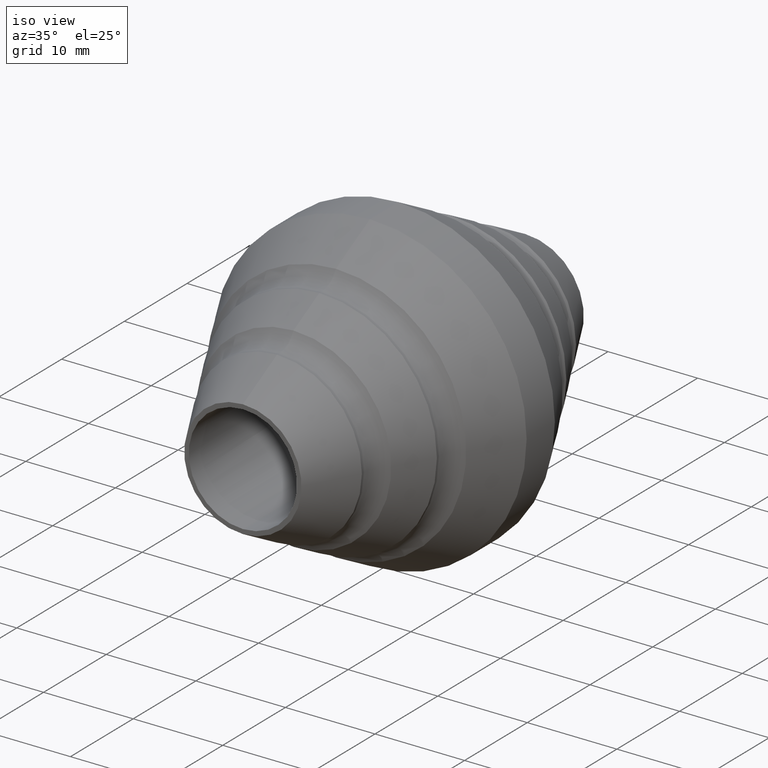
[diagram: clean part render]
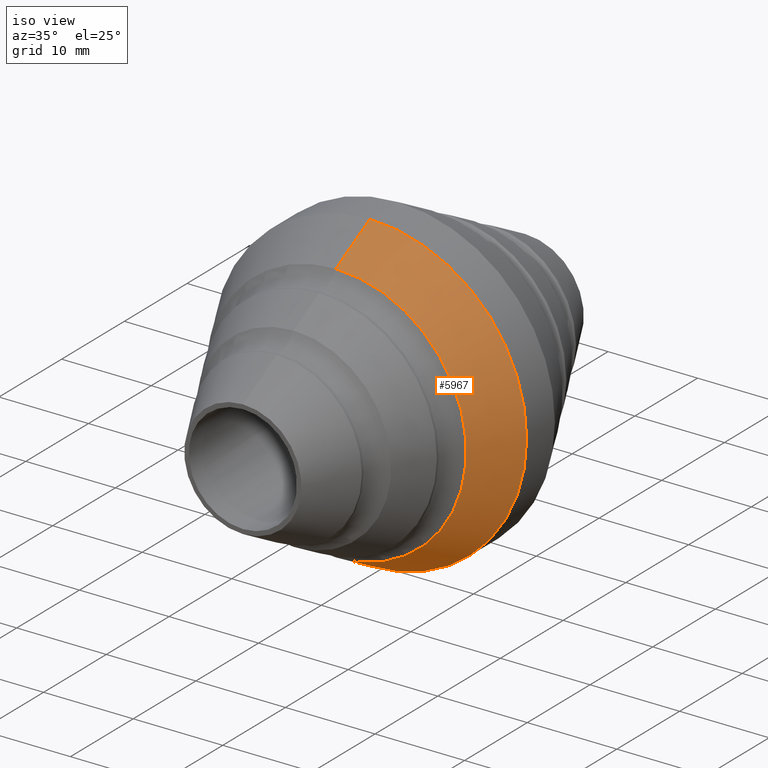
[diagram: tour spotlight — one face highlighted and labeled with its STEP entity id]
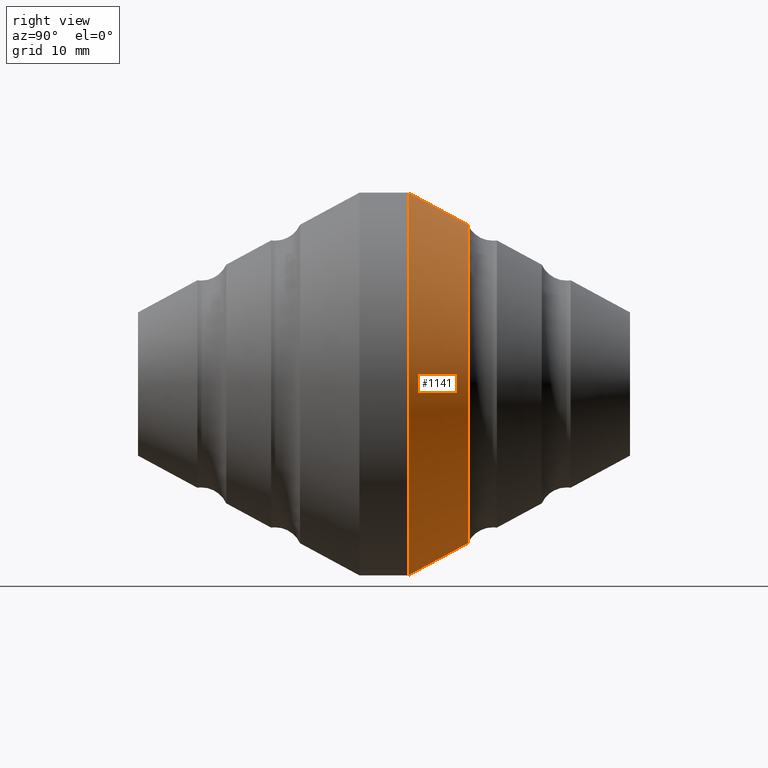
[diagram: tour spotlight — one face highlighted and labeled with its STEP entity id]
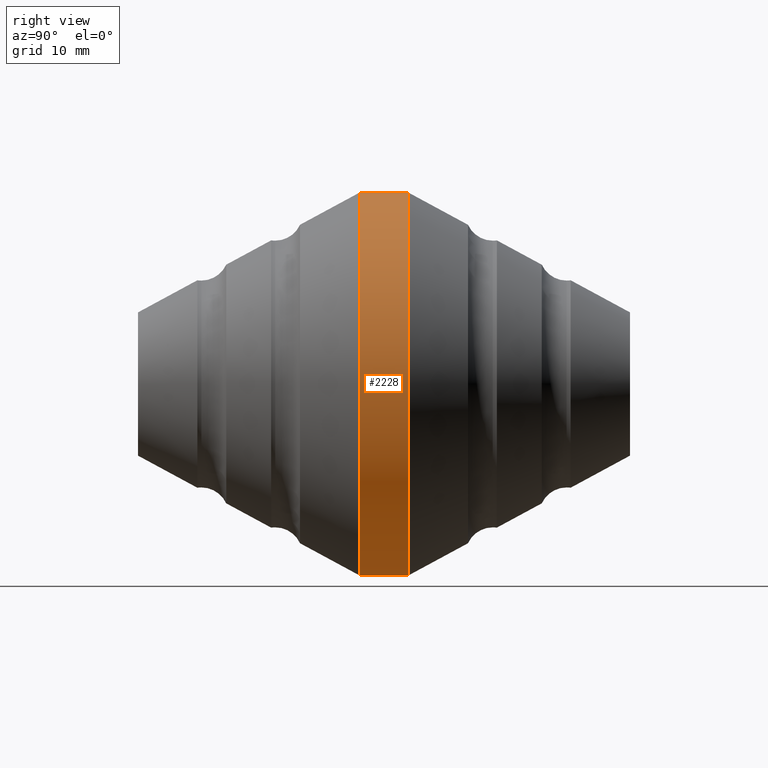
[diagram: tour spotlight — one face highlighted and labeled with its STEP entity id]
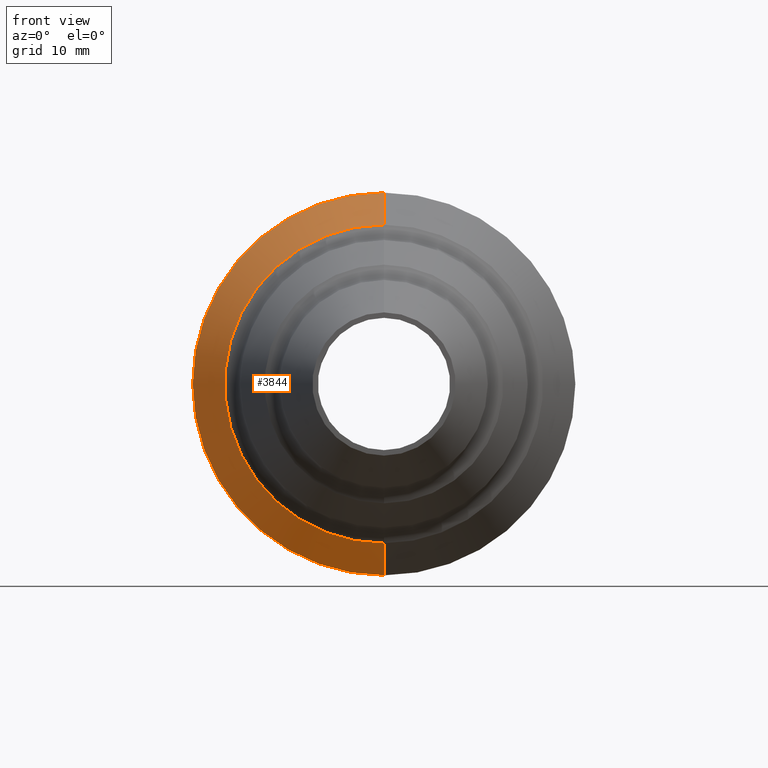
[diagram: tour spotlight — one face highlighted and labeled with its STEP entity id]
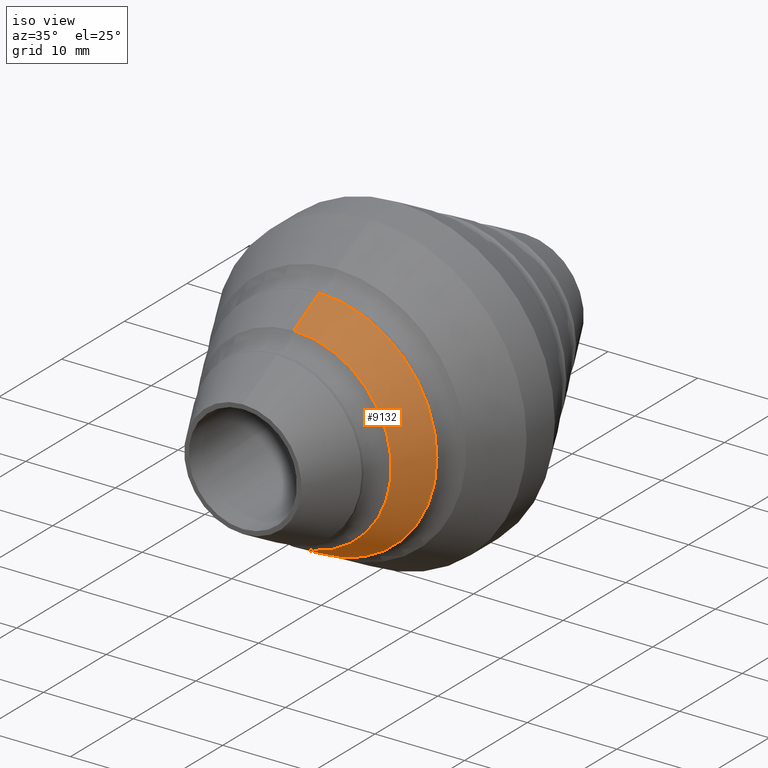
[diagram: tour spotlight — one face highlighted and labeled with its STEP entity id]
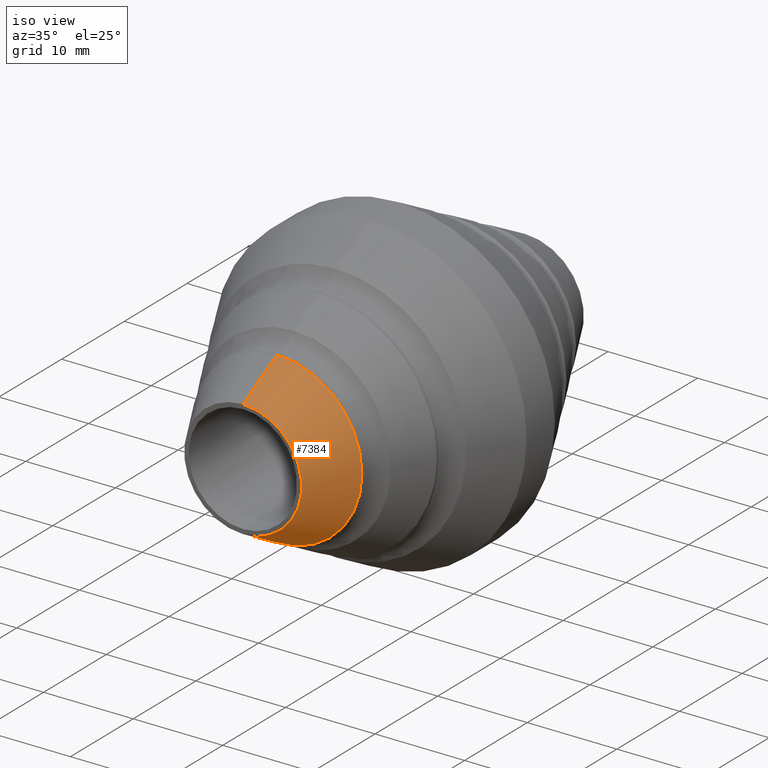
[diagram: tour spotlight — one face highlighted and labeled with its STEP entity id]
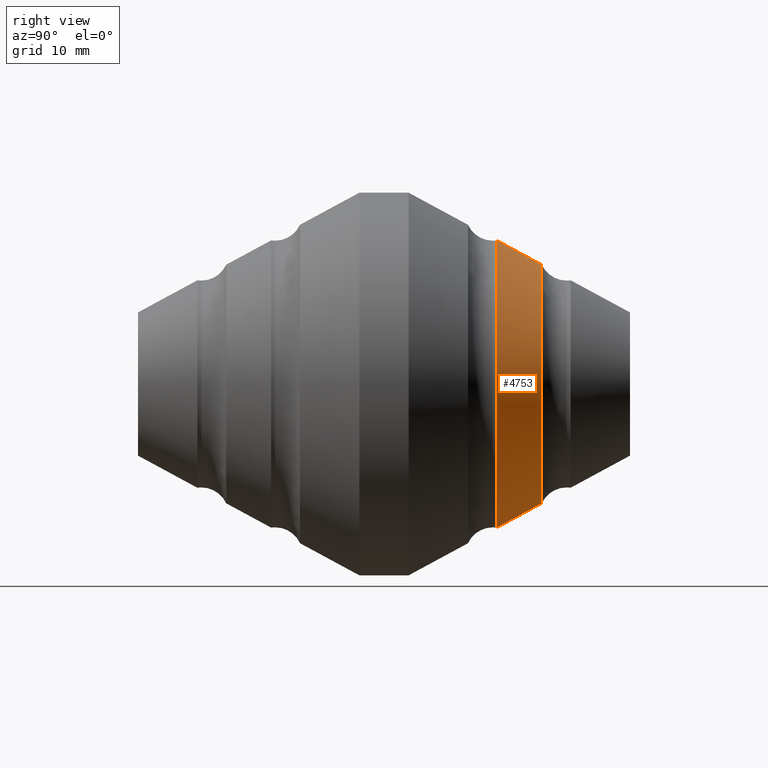
[diagram: tour spotlight — one face highlighted and labeled with its STEP entity id]
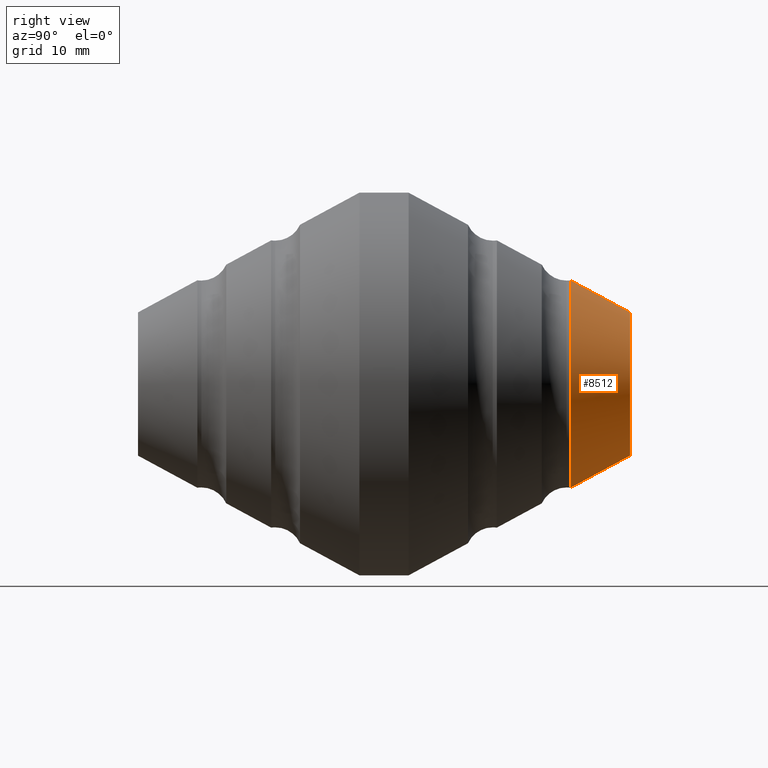
[diagram: tour spotlight — one face highlighted and labeled with its STEP entity id]
A machine part: a face-by-face anatomy tour. The part has 307 B-rep faces; the first image is the clean iso view, then the 8 largest visible faces are spotlighted one at a time (largest first), each with its STEP entity span.

Face 1 — iso view, entity #5967. In plain terms, the highlighted conical surface has half-angle 28.402 deg.
Definition (entity closure, byte-faithful):
#45 = VERTEX_POINT ( 'NONE', #4391 ) ;
#132 = VERTEX_POINT ( 'NONE', #10217 ) ;
#916 = VERTEX_POINT ( 'NONE', #9804 ) ;
#1148 = DIRECTION ( 'NONE',  ( 0.000000000000000000, 0.000000000000000000, -1.000000000000000000 ) ) ;
#1267 = FACE_OUTER_BOUND ( 'NONE', #11438, .T. ) ;
#2614 = AXIS2_PLACEMENT_3D ( 'NONE', #7786, #4566, #1148 ) ;
#3458 = AXIS2_PLACEMENT_3D ( 'NONE', #5836, #13629, #9184 ) ;
#3625 = AXIS2_PLACEMENT_3D ( 'NONE', #8346, #10667, #10525 ) ;
#3966 = CARTESIAN_POINT ( 'NONE',  ( -1.963321905581805599E-15, -7.680550745167210813, 14.56347996742810125 ) ) ;
#4302 = DIRECTION ( 'NONE',  ( -5.825073055777201788E-17, 0.8796328365551915329, 0.4756533116187332544 ) ) ;
#4375 = VECTOR ( 'NONE', #4302, 1000.000000000000000 ) ;
#4391 = CARTESIAN_POINT ( 'NONE',  ( 0.000000000000000000, -7.680550745167210813, -14.56347996742810125 ) ) ;
#4467 = CIRCLE ( 'NONE', #2614, 14.56347996742810125 ) ;
#4566 = DIRECTION ( 'NONE',  ( 0.000000000000000000, -1.000000000000000000, 0.000000000000000000 ) ) ;
#5836 = CARTESIAN_POINT ( 'NONE',  ( 0.000000000000000000, -2.249999999999999556, 0.000000000000000000 ) ) ;
#5967 = ADVANCED_FACE ( 'NONE', ( #1267 ), #6480, .T. ) ;
#6480 = CONICAL_SURFACE ( 'NONE', #3625, 17.50000000000000000, 0.4957065921522886276 ) ;
#6504 = EDGE_CURVE ( 'NONE', #11338, #916, #7340, .T. ) ;
#6831 = EDGE_CURVE ( 'NONE', #45, #11338, #4467, .T. ) ;
#7224 = VECTOR ( 'NONE', #10498, 1000.000000000000000 ) ;
#7340 = LINE ( 'NONE', #8674, #4375 ) ;
#7462 = ORIENTED_EDGE ( 'NONE', *, *, #6504, .F. ) ;
#7689 = ORIENTED_EDGE ( 'NONE', *, *, #13447, .T. ) ;
#7786 = CARTESIAN_POINT ( 'NONE',  ( 0.000000000000000000, -7.680550745167210813, 0.000000000000000000 ) ) ;
#8270 = CARTESIAN_POINT ( 'NONE',  ( 0.000000000000000000, -2.249999999999999556, -17.50000000000000000 ) ) ;
#8346 = CARTESIAN_POINT ( 'NONE',  ( 0.000000000000000000, -2.249999999999999556, 0.000000000000000000 ) ) ;
#8674 = CARTESIAN_POINT ( 'NONE',  ( -2.143131898507868248E-15, -2.249999999999999556, 17.50000000000000000 ) ) ;
#9168 = ORIENTED_EDGE ( 'NONE', *, *, #9640, .T. ) ;
#9184 = DIRECTION ( 'NONE',  ( 0.000000000000000000, 0.000000000000000000, -1.000000000000000000 ) ) ;
#9640 = EDGE_CURVE ( 'NONE', #132, #916, #11787, .T. ) ;
#9804 = CARTESIAN_POINT ( 'NONE',  ( 2.143131898507868248E-15, -2.249999999999999556, 17.50000000000000000 ) ) ;
#10005 = LINE ( 'NONE', #8270, #7224 ) ;
#10217 = CARTESIAN_POINT ( 'NONE',  ( 0.000000000000000000, -2.249999999999999556, -17.50000000000000000 ) ) ;
#10498 = DIRECTION ( 'NONE',  ( 0.000000000000000000, 0.8796328365551915329, -0.4756533116187332544 ) ) ;
#10525 = DIRECTION ( 'NONE',  ( 0.000000000000000000, 0.000000000000000000, -1.000000000000000000 ) ) ;
#10667 = DIRECTION ( 'NONE',  ( -0.000000000000000000, 1.000000000000000000, -0.000000000000000000 ) ) ;
#11338 = VERTEX_POINT ( 'NONE', #3966 ) ;
#11438 = EDGE_LOOP ( 'NONE', ( #7462, #11570, #7689, #9168 ) ) ;
#11570 = ORIENTED_EDGE ( 'NONE', *, *, #6831, .F. ) ;
#11787 = CIRCLE ( 'NONE', #3458, 17.50000000000000000 ) ;
#13447 = EDGE_CURVE ( 'NONE', #45, #132, #10005, .T. ) ;
#13629 = DIRECTION ( 'NONE',  ( 0.000000000000000000, -1.000000000000000000, 0.000000000000000000 ) ) ;

Face 2 — right view, entity #1141. In plain terms, the highlighted conical surface has half-angle 28.402 deg.
Definition (entity closure, byte-faithful):
#115 = VECTOR ( 'NONE', #5088, 1000.000000000000000 ) ;
#360 = VERTEX_POINT ( 'NONE', #766 ) ;
#445 = ORIENTED_EDGE ( 'NONE', *, *, #10957, .F. ) ;
#766 = CARTESIAN_POINT ( 'NONE',  ( 0.000000000000000000, 7.680550745167210813, -14.56347996742810125 ) ) ;
#819 = FACE_OUTER_BOUND ( 'NONE', #8289, .T. ) ;
#919 = CARTESIAN_POINT ( 'NONE',  ( 0.000000000000000000, 2.249999999999999556, -17.50000000000000000 ) ) ;
#1141 = ADVANCED_FACE ( 'NONE', ( #819 ), #8099, .T. ) ;
#2324 = EDGE_CURVE ( 'NONE', #4717, #4870, #7048, .T. ) ;
#2426 = DIRECTION ( 'NONE',  ( -0.000000000000000000, -1.000000000000000000, -0.000000000000000000 ) ) ;
#2858 = ORIENTED_EDGE ( 'NONE', *, *, #9951, .F. ) ;
#3529 = DIRECTION ( 'NONE',  ( 0.000000000000000000, 0.000000000000000000, -1.000000000000000000 ) ) ;
#3969 = CARTESIAN_POINT ( 'NONE',  ( 2.143131898507868248E-15, 2.249999999999999556, 17.50000000000000000 ) ) ;
#4223 = DIRECTION ( 'NONE',  ( 0.000000000000000000, 0.000000000000000000, -1.000000000000000000 ) ) ;
#4717 = VERTEX_POINT ( 'NONE', #6821 ) ;
#4870 = VERTEX_POINT ( 'NONE', #6461 ) ;
#5088 = DIRECTION ( 'NONE',  ( 5.825073055777201788E-17, -0.8796328365551915329, 0.4756533116187332544 ) ) ;
#5704 = CIRCLE ( 'NONE', #12754, 17.50000000000000000 ) ;
#5771 = CARTESIAN_POINT ( 'NONE',  ( 0.000000000000000000, 2.249999999999999556, 0.000000000000000000 ) ) ;
#6109 = CIRCLE ( 'NONE', #6728, 14.56347996742810125 ) ;
#6461 = CARTESIAN_POINT ( 'NONE',  ( 2.143131898507868248E-15, 2.249999999999999556, 17.50000000000000000 ) ) ;
#6588 = LINE ( 'NONE', #12272, #9181 ) ;
#6728 = AXIS2_PLACEMENT_3D ( 'NONE', #12751, #8214, #9336 ) ;
#6821 = CARTESIAN_POINT ( 'NONE',  ( 1.963321905581805599E-15, 7.680550745167210813, 14.56347996742810125 ) ) ;
#7048 = LINE ( 'NONE', #3969, #115 ) ;
#7435 = EDGE_CURVE ( 'NONE', #360, #4717, #6109, .T. ) ;
#7671 = DIRECTION ( 'NONE',  ( 0.000000000000000000, -0.8796328365551915329, -0.4756533116187332544 ) ) ;
#8099 = CONICAL_SURFACE ( 'NONE', #11292, 17.50000000000000000, 0.4957065921522886276 ) ;
#8214 = DIRECTION ( 'NONE',  ( -0.000000000000000000, -1.000000000000000000, -0.000000000000000000 ) ) ;
#8289 = EDGE_LOOP ( 'NONE', ( #13648, #13192, #445, #2858 ) ) ;
#9181 = VECTOR ( 'NONE', #7671, 1000.000000000000000 ) ;
#9336 = DIRECTION ( 'NONE',  ( 0.000000000000000000, 0.000000000000000000, -1.000000000000000000 ) ) ;
#9951 = EDGE_CURVE ( 'NONE', #360, #11699, #6588, .T. ) ;
#10957 = EDGE_CURVE ( 'NONE', #11699, #4870, #5704, .T. ) ;
#11292 = AXIS2_PLACEMENT_3D ( 'NONE', #5771, #2426, #3529 ) ;
#11699 = VERTEX_POINT ( 'NONE', #919 ) ;
#11801 = CARTESIAN_POINT ( 'NONE',  ( 0.000000000000000000, 2.249999999999999556, 0.000000000000000000 ) ) ;
#12272 = CARTESIAN_POINT ( 'NONE',  ( 0.000000000000000000, 2.249999999999999556, -17.50000000000000000 ) ) ;
#12751 = CARTESIAN_POINT ( 'NONE',  ( 0.000000000000000000, 7.680550745167210813, 0.000000000000000000 ) ) ;
#12754 = AXIS2_PLACEMENT_3D ( 'NONE', #11801, #14100, #4223 ) ;
#13192 = ORIENTED_EDGE ( 'NONE', *, *, #2324, .T. ) ;
#13648 = ORIENTED_EDGE ( 'NONE', *, *, #7435, .T. ) ;
#14100 = DIRECTION ( 'NONE',  ( -0.000000000000000000, -1.000000000000000000, -0.000000000000000000 ) ) ;

Face 3 — right view, entity #2228. In plain terms, the highlighted cylindrical surface (partial cylindrical patch) has radius 17.5 mm, axis along (-0, -1, -0).
Definition (entity closure, byte-faithful):
#132 = VERTEX_POINT ( 'NONE', #10217 ) ;
#506 = CARTESIAN_POINT ( 'NONE',  ( 0.000000000000000000, 0.000000000000000000, 0.000000000000000000 ) ) ;
#563 = ORIENTED_EDGE ( 'NONE', *, *, #9640, .F. ) ;
#836 = LINE ( 'NONE', #7032, #11404 ) ;
#916 = VERTEX_POINT ( 'NONE', #9804 ) ;
#919 = CARTESIAN_POINT ( 'NONE',  ( 0.000000000000000000, 2.249999999999999556, -17.50000000000000000 ) ) ;
#1491 = LINE ( 'NONE', #7987, #8251 ) ;
#1565 = DIRECTION ( 'NONE',  ( 0.000000000000000000, 0.000000000000000000, -1.000000000000000000 ) ) ;
#2183 = ORIENTED_EDGE ( 'NONE', *, *, #10957, .T. ) ;
#2228 = ADVANCED_FACE ( 'NONE', ( #3726 ), #8596, .T. ) ;
#2429 = EDGE_CURVE ( 'NONE', #4870, #916, #1491, .T. ) ;
#3458 = AXIS2_PLACEMENT_3D ( 'NONE', #5836, #13629, #9184 ) ;
#3726 = FACE_OUTER_BOUND ( 'NONE', #12122, .T. ) ;
#4223 = DIRECTION ( 'NONE',  ( 0.000000000000000000, 0.000000000000000000, -1.000000000000000000 ) ) ;
#4852 = DIRECTION ( 'NONE',  ( -0.000000000000000000, -1.000000000000000000, -0.000000000000000000 ) ) ;
#4870 = VERTEX_POINT ( 'NONE', #6461 ) ;
#5704 = CIRCLE ( 'NONE', #12754, 17.50000000000000000 ) ;
#5836 = CARTESIAN_POINT ( 'NONE',  ( 0.000000000000000000, -2.249999999999999556, 0.000000000000000000 ) ) ;
#6023 = AXIS2_PLACEMENT_3D ( 'NONE', #506, #4852, #1565 ) ;
#6461 = CARTESIAN_POINT ( 'NONE',  ( 2.143131898507868248E-15, 2.249999999999999556, 17.50000000000000000 ) ) ;
#7032 = CARTESIAN_POINT ( 'NONE',  ( 0.000000000000000000, 0.000000000000000000, -17.50000000000000000 ) ) ;
#7987 = CARTESIAN_POINT ( 'NONE',  ( 2.143131898507868248E-15, 0.000000000000000000, 17.50000000000000000 ) ) ;
#8076 = ORIENTED_EDGE ( 'NONE', *, *, #2429, .T. ) ;
#8153 = DIRECTION ( 'NONE',  ( -0.000000000000000000, -1.000000000000000000, -0.000000000000000000 ) ) ;
#8251 = VECTOR ( 'NONE', #10167, 1000.000000000000000 ) ;
#8596 = CYLINDRICAL_SURFACE ( 'NONE', #6023, 17.50000000000000000 ) ;
#9184 = DIRECTION ( 'NONE',  ( 0.000000000000000000, 0.000000000000000000, -1.000000000000000000 ) ) ;
#9640 = EDGE_CURVE ( 'NONE', #132, #916, #11787, .T. ) ;
#9804 = CARTESIAN_POINT ( 'NONE',  ( 2.143131898507868248E-15, -2.249999999999999556, 17.50000000000000000 ) ) ;
#10167 = DIRECTION ( 'NONE',  ( -0.000000000000000000, -1.000000000000000000, -0.000000000000000000 ) ) ;
#10217 = CARTESIAN_POINT ( 'NONE',  ( 0.000000000000000000, -2.249999999999999556, -17.50000000000000000 ) ) ;
#10957 = EDGE_CURVE ( 'NONE', #11699, #4870, #5704, .T. ) ;
#11404 = VECTOR ( 'NONE', #8153, 1000.000000000000000 ) ;
#11623 = ORIENTED_EDGE ( 'NONE', *, *, #12866, .F. ) ;
#11699 = VERTEX_POINT ( 'NONE', #919 ) ;
#11787 = CIRCLE ( 'NONE', #3458, 17.50000000000000000 ) ;
#11801 = CARTESIAN_POINT ( 'NONE',  ( 0.000000000000000000, 2.249999999999999556, 0.000000000000000000 ) ) ;
#12122 = EDGE_LOOP ( 'NONE', ( #2183, #8076, #563, #11623 ) ) ;
#12754 = AXIS2_PLACEMENT_3D ( 'NONE', #11801, #14100, #4223 ) ;
#12866 = EDGE_CURVE ( 'NONE', #11699, #132, #836, .T. ) ;
#13629 = DIRECTION ( 'NONE',  ( 0.000000000000000000, -1.000000000000000000, 0.000000000000000000 ) ) ;
#14100 = DIRECTION ( 'NONE',  ( -0.000000000000000000, -1.000000000000000000, -0.000000000000000000 ) ) ;

Face 4 — front view, entity #3844. In plain terms, the highlighted conical surface has half-angle 28.402 deg.
Definition (entity closure, byte-faithful):
#45 = VERTEX_POINT ( 'NONE', #4391 ) ;
#78 = DIRECTION ( 'NONE',  ( 0.000000000000000000, 0.000000000000000000, -1.000000000000000000 ) ) ;
#132 = VERTEX_POINT ( 'NONE', #10217 ) ;
#916 = VERTEX_POINT ( 'NONE', #9804 ) ;
#1480 = CONICAL_SURFACE ( 'NONE', #6129, 17.50000000000000000, 0.4957065921522886276 ) ;
#2012 = CIRCLE ( 'NONE', #5735, 14.56347996742810125 ) ;
#2449 = ORIENTED_EDGE ( 'NONE', *, *, #4144, .T. ) ;
#2790 = CARTESIAN_POINT ( 'NONE',  ( 0.000000000000000000, -7.680550745167210813, 0.000000000000000000 ) ) ;
#2863 = AXIS2_PLACEMENT_3D ( 'NONE', #5191, #4160, #7326 ) ;
#3844 = ADVANCED_FACE ( 'NONE', ( #13259 ), #1480, .T. ) ;
#3966 = CARTESIAN_POINT ( 'NONE',  ( -1.963321905581805599E-15, -7.680550745167210813, 14.56347996742810125 ) ) ;
#4144 = EDGE_CURVE ( 'NONE', #916, #132, #10833, .T. ) ;
#4160 = DIRECTION ( 'NONE',  ( 0.000000000000000000, -1.000000000000000000, 0.000000000000000000 ) ) ;
#4302 = DIRECTION ( 'NONE',  ( -5.825073055777201788E-17, 0.8796328365551915329, 0.4756533116187332544 ) ) ;
#4375 = VECTOR ( 'NONE', #4302, 1000.000000000000000 ) ;
#4391 = CARTESIAN_POINT ( 'NONE',  ( 0.000000000000000000, -7.680550745167210813, -14.56347996742810125 ) ) ;
#5191 = CARTESIAN_POINT ( 'NONE',  ( 0.000000000000000000, -2.249999999999999556, 0.000000000000000000 ) ) ;
#5735 = AXIS2_PLACEMENT_3D ( 'NONE', #2790, #10560, #13982 ) ;
#6129 = AXIS2_PLACEMENT_3D ( 'NONE', #6711, #8887, #78 ) ;
#6483 = ORIENTED_EDGE ( 'NONE', *, *, #13447, .F. ) ;
#6504 = EDGE_CURVE ( 'NONE', #11338, #916, #7340, .T. ) ;
#6711 = CARTESIAN_POINT ( 'NONE',  ( 0.000000000000000000, -2.249999999999999556, 0.000000000000000000 ) ) ;
#7224 = VECTOR ( 'NONE', #10498, 1000.000000000000000 ) ;
#7326 = DIRECTION ( 'NONE',  ( 0.000000000000000000, 0.000000000000000000, -1.000000000000000000 ) ) ;
#7340 = LINE ( 'NONE', #8674, #4375 ) ;
#8270 = CARTESIAN_POINT ( 'NONE',  ( 0.000000000000000000, -2.249999999999999556, -17.50000000000000000 ) ) ;
#8277 = ORIENTED_EDGE ( 'NONE', *, *, #6504, .T. ) ;
#8674 = CARTESIAN_POINT ( 'NONE',  ( -2.143131898507868248E-15, -2.249999999999999556, 17.50000000000000000 ) ) ;
#8807 = EDGE_LOOP ( 'NONE', ( #13748, #8277, #2449, #6483 ) ) ;
#8887 = DIRECTION ( 'NONE',  ( -0.000000000000000000, 1.000000000000000000, -0.000000000000000000 ) ) ;
#9804 = CARTESIAN_POINT ( 'NONE',  ( 2.143131898507868248E-15, -2.249999999999999556, 17.50000000000000000 ) ) ;
#10005 = LINE ( 'NONE', #8270, #7224 ) ;
#10217 = CARTESIAN_POINT ( 'NONE',  ( 0.000000000000000000, -2.249999999999999556, -17.50000000000000000 ) ) ;
#10498 = DIRECTION ( 'NONE',  ( 0.000000000000000000, 0.8796328365551915329, -0.4756533116187332544 ) ) ;
#10560 = DIRECTION ( 'NONE',  ( 0.000000000000000000, -1.000000000000000000, 0.000000000000000000 ) ) ;
#10833 = CIRCLE ( 'NONE', #2863, 17.50000000000000000 ) ;
#11338 = VERTEX_POINT ( 'NONE', #3966 ) ;
#13259 = FACE_OUTER_BOUND ( 'NONE', #8807, .T. ) ;
#13447 = EDGE_CURVE ( 'NONE', #45, #132, #10005, .T. ) ;
#13748 = ORIENTED_EDGE ( 'NONE', *, *, #14265, .F. ) ;
#13982 = DIRECTION ( 'NONE',  ( 0.000000000000000000, 0.000000000000000000, -1.000000000000000000 ) ) ;
#14265 = EDGE_CURVE ( 'NONE', #11338, #45, #2012, .T. ) ;

Face 5 — iso view, entity #9132. In plain terms, the highlighted conical surface has half-angle 28.402 deg.
Definition (entity closure, byte-faithful):
#618 = ORIENTED_EDGE ( 'NONE', *, *, #1385, .F. ) ;
#989 = VERTEX_POINT ( 'NONE', #11072 ) ;
#1032 = DIRECTION ( 'NONE',  ( 0.000000000000000000, 0.000000000000000000, -1.000000000000000000 ) ) ;
#1385 = EDGE_CURVE ( 'NONE', #2610, #989, #6193, .T. ) ;
#2277 = EDGE_CURVE ( 'NONE', #3716, #3201, #13099, .T. ) ;
#2292 = DIRECTION ( 'NONE',  ( 0.000000000000000000, 0.000000000000000000, -1.000000000000000000 ) ) ;
#2610 = VERTEX_POINT ( 'NONE', #11855 ) ;
#2720 = EDGE_CURVE ( 'NONE', #3716, #2610, #8072, .T. ) ;
#3201 = VERTEX_POINT ( 'NONE', #9940 ) ;
#3379 = DIRECTION ( 'NONE',  ( -0.000000000000000000, 1.000000000000000000, -0.000000000000000000 ) ) ;
#3495 = DIRECTION ( 'NONE',  ( 0.000000000000000000, -1.000000000000000000, 0.000000000000000000 ) ) ;
#3716 = VERTEX_POINT ( 'NONE', #9762 ) ;
#4068 = DIRECTION ( 'NONE',  ( 0.000000000000000000, 0.8796328365551916439, -0.4756533116187330323 ) ) ;
#4280 = DIRECTION ( 'NONE',  ( 0.000000000000000000, 0.000000000000000000, -1.000000000000000000 ) ) ;
#4846 = CONICAL_SURFACE ( 'NONE', #9602, 13.13652003257189804, 0.4957065921522884611 ) ;
#5520 = CARTESIAN_POINT ( 'NONE',  ( -1.608759720982425861E-15, -10.31944925483278475, 13.13652003257189804 ) ) ;
#6193 = LINE ( 'NONE', #5520, #9488 ) ;
#7476 = CARTESIAN_POINT ( 'NONE',  ( 0.000000000000000000, -10.31944925483278475, -13.13652003257189804 ) ) ;
#8066 = EDGE_LOOP ( 'NONE', ( #618, #10150, #13137, #10096 ) ) ;
#8072 = CIRCLE ( 'NONE', #9460, 10.91347996742809734 ) ;
#8717 = EDGE_CURVE ( 'NONE', #3201, #989, #12665, .T. ) ;
#9112 = VECTOR ( 'NONE', #4068, 1000.000000000000000 ) ;
#9132 = ADVANCED_FACE ( 'NONE', ( #9544 ), #4846, .T. ) ;
#9133 = CARTESIAN_POINT ( 'NONE',  ( 0.000000000000000000, -10.31944925483278475, 0.000000000000000000 ) ) ;
#9460 = AXIS2_PLACEMENT_3D ( 'NONE', #13235, #9722, #4280 ) ;
#9488 = VECTOR ( 'NONE', #11060, 1000.000000000000000 ) ;
#9544 = FACE_OUTER_BOUND ( 'NONE', #8066, .T. ) ;
#9602 = AXIS2_PLACEMENT_3D ( 'NONE', #13226, #3379, #1032 ) ;
#9722 = DIRECTION ( 'NONE',  ( 0.000000000000000000, -1.000000000000000000, 0.000000000000000000 ) ) ;
#9762 = CARTESIAN_POINT ( 'NONE',  ( 0.000000000000000000, -14.43055074516721348, -10.91347996742809734 ) ) ;
#9940 = CARTESIAN_POINT ( 'NONE',  ( 0.000000000000000000, -10.31944925483278475, -13.13652003257189804 ) ) ;
#10096 = ORIENTED_EDGE ( 'NONE', *, *, #8717, .T. ) ;
#10150 = ORIENTED_EDGE ( 'NONE', *, *, #2720, .F. ) ;
#10160 = AXIS2_PLACEMENT_3D ( 'NONE', #9133, #3495, #2292 ) ;
#11060 = DIRECTION ( 'NONE',  ( -5.825073055777199323E-17, 0.8796328365551916439, 0.4756533116187330323 ) ) ;
#11072 = CARTESIAN_POINT ( 'NONE',  ( -1.608759720982426058E-15, -10.31944925483278475, 13.13652003257189804 ) ) ;
#11855 = CARTESIAN_POINT ( 'NONE',  ( -1.472637775974691892E-15, -14.43055074516721348, 10.91347996742809734 ) ) ;
#12665 = CIRCLE ( 'NONE', #10160, 13.13652003257189804 ) ;
#13099 = LINE ( 'NONE', #7476, #9112 ) ;
#13137 = ORIENTED_EDGE ( 'NONE', *, *, #2277, .T. ) ;
#13226 = CARTESIAN_POINT ( 'NONE',  ( 0.000000000000000000, -10.31944925483278475, 0.000000000000000000 ) ) ;
#13235 = CARTESIAN_POINT ( 'NONE',  ( 0.000000000000000000, -14.43055074516721348, 0.000000000000000000 ) ) ;

Face 6 — iso view, entity #7384. In plain terms, the highlighted conical surface has half-angle 28.402 deg.
Definition (entity closure, byte-faithful):
#24 = CARTESIAN_POINT ( 'NONE',  ( -1.161763639293642018E-15, -17.06944925483278652, 9.486520032571897687 ) ) ;
#155 = ORIENTED_EDGE ( 'NONE', *, *, #753, .T. ) ;
#499 = CARTESIAN_POINT ( 'NONE',  ( 0.000000000000000000, -17.06944925483278652, -9.486520032571897687 ) ) ;
#682 = VECTOR ( 'NONE', #10328, 999.9999999999998863 ) ;
#753 = EDGE_CURVE ( 'NONE', #13548, #1274, #6207, .T. ) ;
#851 = VERTEX_POINT ( 'NONE', #11990 ) ;
#1274 = VERTEX_POINT ( 'NONE', #6596 ) ;
#1280 = DIRECTION ( 'NONE',  ( -0.000000000000000000, 1.000000000000000000, -0.000000000000000000 ) ) ;
#1629 = CARTESIAN_POINT ( 'NONE',  ( 0.000000000000000000, -17.06944925483278652, -9.486520032571897687 ) ) ;
#1770 = FACE_OUTER_BOUND ( 'NONE', #12062, .T. ) ;
#4916 = EDGE_CURVE ( 'NONE', #851, #1274, #12554, .T. ) ;
#5051 = AXIS2_PLACEMENT_3D ( 'NONE', #5202, #5094, #6173 ) ;
#5094 = DIRECTION ( 'NONE',  ( 0.000000000000000000, -1.000000000000000000, 0.000000000000000000 ) ) ;
#5202 = CARTESIAN_POINT ( 'NONE',  ( 0.000000000000000000, -17.06944925483278652, 0.000000000000000000 ) ) ;
#5976 = AXIS2_PLACEMENT_3D ( 'NONE', #13243, #1280, #12477 ) ;
#6014 = DIRECTION ( 'NONE',  ( 0.000000000000000000, -1.000000000000000000, 0.000000000000000000 ) ) ;
#6173 = DIRECTION ( 'NONE',  ( 0.000000000000000000, 0.000000000000000000, -1.000000000000000000 ) ) ;
#6207 = CIRCLE ( 'NONE', #5051, 9.486520032571897687 ) ;
#6596 = CARTESIAN_POINT ( 'NONE',  ( -1.161763639293642018E-15, -17.06944925483278652, 9.486520032571897687 ) ) ;
#6743 = LINE ( 'NONE', #499, #682 ) ;
#7071 = CARTESIAN_POINT ( 'NONE',  ( 0.000000000000000000, -22.50000000000000000, -6.549999999999997158 ) ) ;
#7089 = DIRECTION ( 'NONE',  ( 0.000000000000000000, 0.000000000000000000, -1.000000000000000000 ) ) ;
#7179 = VERTEX_POINT ( 'NONE', #7071 ) ;
#7384 = ADVANCED_FACE ( 'NONE', ( #1770 ), #12012, .T. ) ;
#8377 = ORIENTED_EDGE ( 'NONE', *, *, #4916, .F. ) ;
#9445 = VECTOR ( 'NONE', #12884, 999.9999999999998863 ) ;
#9517 = CIRCLE ( 'NONE', #10739, 6.549999999999997158 ) ;
#10023 = ORIENTED_EDGE ( 'NONE', *, *, #11258, .T. ) ;
#10328 = DIRECTION ( 'NONE',  ( 0.000000000000000000, 0.8796328365551914219, -0.4756533116187334764 ) ) ;
#10739 = AXIS2_PLACEMENT_3D ( 'NONE', #12645, #6014, #7089 ) ;
#11258 = EDGE_CURVE ( 'NONE', #7179, #13548, #6743, .T. ) ;
#11271 = EDGE_CURVE ( 'NONE', #7179, #851, #9517, .T. ) ;
#11990 = CARTESIAN_POINT ( 'NONE',  ( -9.819536463675791713E-16, -22.50000000000000000, 6.549999999999997158 ) ) ;
#12012 = CONICAL_SURFACE ( 'NONE', #5976, 9.486520032571897687, 0.4957065921522889052 ) ;
#12062 = EDGE_LOOP ( 'NONE', ( #8377, #14332, #10023, #155 ) ) ;
#12477 = DIRECTION ( 'NONE',  ( 0.000000000000000000, 0.000000000000000000, -1.000000000000000000 ) ) ;
#12554 = LINE ( 'NONE', #24, #9445 ) ;
#12645 = CARTESIAN_POINT ( 'NONE',  ( 0.000000000000000000, -22.50000000000000000, 0.000000000000000000 ) ) ;
#12884 = DIRECTION ( 'NONE',  ( -5.825073055777204253E-17, 0.8796328365551914219, 0.4756533116187334764 ) ) ;
#13243 = CARTESIAN_POINT ( 'NONE',  ( 0.000000000000000000, -17.06944925483278652, 0.000000000000000000 ) ) ;
#13548 = VERTEX_POINT ( 'NONE', #1629 ) ;
#14332 = ORIENTED_EDGE ( 'NONE', *, *, #11271, .F. ) ;

Face 7 — right view, entity #4753. In plain terms, the highlighted conical surface has half-angle 28.402 deg.
Definition (entity closure, byte-faithful):
#693 = VERTEX_POINT ( 'NONE', #7054 ) ;
#958 = CARTESIAN_POINT ( 'NONE',  ( 0.000000000000000000, 14.43055074516721348, 0.000000000000000000 ) ) ;
#1369 = EDGE_CURVE ( 'NONE', #11417, #7990, #14325, .T. ) ;
#1790 = LINE ( 'NONE', #8721, #2134 ) ;
#2134 = VECTOR ( 'NONE', #14131, 1000.000000000000000 ) ;
#2297 = DIRECTION ( 'NONE',  ( -0.000000000000000000, -1.000000000000000000, -0.000000000000000000 ) ) ;
#2364 = DIRECTION ( 'NONE',  ( 0.000000000000000000, 0.000000000000000000, -1.000000000000000000 ) ) ;
#2417 = CARTESIAN_POINT ( 'NONE',  ( 0.000000000000000000, 10.31944925483278475, 0.000000000000000000 ) ) ;
#2815 = VECTOR ( 'NONE', #8691, 1000.000000000000000 ) ;
#3530 = CARTESIAN_POINT ( 'NONE',  ( 0.000000000000000000, 14.43055074516721348, -10.91347996742809734 ) ) ;
#4753 = ADVANCED_FACE ( 'NONE', ( #11709 ), #14289, .T. ) ;
#5265 = ORIENTED_EDGE ( 'NONE', *, *, #1369, .F. ) ;
#5291 = ORIENTED_EDGE ( 'NONE', *, *, #6282, .T. ) ;
#5296 = AXIS2_PLACEMENT_3D ( 'NONE', #11279, #2297, #10062 ) ;
#5412 = DIRECTION ( 'NONE',  ( -0.000000000000000000, -1.000000000000000000, -0.000000000000000000 ) ) ;
#5728 = ORIENTED_EDGE ( 'NONE', *, *, #10598, .T. ) ;
#5776 = LINE ( 'NONE', #6083, #2815 ) ;
#6083 = CARTESIAN_POINT ( 'NONE',  ( 1.608759720982425861E-15, 10.31944925483278475, 13.13652003257189804 ) ) ;
#6282 = EDGE_CURVE ( 'NONE', #693, #7990, #5776, .T. ) ;
#6474 = EDGE_CURVE ( 'NONE', #8017, #11417, #1790, .T. ) ;
#7054 = CARTESIAN_POINT ( 'NONE',  ( 1.472637775974691892E-15, 14.43055074516721348, 10.91347996742809734 ) ) ;
#7503 = ORIENTED_EDGE ( 'NONE', *, *, #6474, .F. ) ;
#7990 = VERTEX_POINT ( 'NONE', #8103 ) ;
#8017 = VERTEX_POINT ( 'NONE', #3530 ) ;
#8103 = CARTESIAN_POINT ( 'NONE',  ( 1.608759720982426058E-15, 10.31944925483278475, 13.13652003257189804 ) ) ;
#8115 = EDGE_LOOP ( 'NONE', ( #5728, #5291, #5265, #7503 ) ) ;
#8127 = AXIS2_PLACEMENT_3D ( 'NONE', #2417, #9064, #2364 ) ;
#8691 = DIRECTION ( 'NONE',  ( 5.825073055777199323E-17, -0.8796328365551916439, 0.4756533116187330323 ) ) ;
#8708 = DIRECTION ( 'NONE',  ( 0.000000000000000000, 0.000000000000000000, -1.000000000000000000 ) ) ;
#8721 = CARTESIAN_POINT ( 'NONE',  ( 0.000000000000000000, 10.31944925483278475, -13.13652003257189804 ) ) ;
#9064 = DIRECTION ( 'NONE',  ( -0.000000000000000000, -1.000000000000000000, -0.000000000000000000 ) ) ;
#10062 = DIRECTION ( 'NONE',  ( 0.000000000000000000, 0.000000000000000000, -1.000000000000000000 ) ) ;
#10598 = EDGE_CURVE ( 'NONE', #8017, #693, #11261, .T. ) ;
#11261 = CIRCLE ( 'NONE', #11569, 10.91347996742809734 ) ;
#11279 = CARTESIAN_POINT ( 'NONE',  ( 0.000000000000000000, 10.31944925483278475, 0.000000000000000000 ) ) ;
#11417 = VERTEX_POINT ( 'NONE', #13602 ) ;
#11569 = AXIS2_PLACEMENT_3D ( 'NONE', #958, #5412, #8708 ) ;
#11709 = FACE_OUTER_BOUND ( 'NONE', #8115, .T. ) ;
#13602 = CARTESIAN_POINT ( 'NONE',  ( 0.000000000000000000, 10.31944925483278475, -13.13652003257189804 ) ) ;
#14131 = DIRECTION ( 'NONE',  ( 0.000000000000000000, -0.8796328365551916439, -0.4756533116187330323 ) ) ;
#14289 = CONICAL_SURFACE ( 'NONE', #5296, 13.13652003257189804, 0.4957065921522884611 ) ;
#14325 = CIRCLE ( 'NONE', #8127, 13.13652003257189804 ) ;

Face 8 — right view, entity #8512. In plain terms, the highlighted conical surface has half-angle 28.402 deg.
Definition (entity closure, byte-faithful):
#40 = CARTESIAN_POINT ( 'NONE',  ( 1.161763639293642018E-15, 17.06944925483278652, 9.486520032571897687 ) ) ;
#264 = ORIENTED_EDGE ( 'NONE', *, *, #8182, .T. ) ;
#374 = CONICAL_SURFACE ( 'NONE', #9139, 9.486520032571897687, 0.4957065921522889052 ) ;
#711 = CARTESIAN_POINT ( 'NONE',  ( 0.000000000000000000, 22.50000000000000000, -6.549999999999997158 ) ) ;
#1819 = DIRECTION ( 'NONE',  ( 0.000000000000000000, 0.000000000000000000, -1.000000000000000000 ) ) ;
#1837 = VERTEX_POINT ( 'NONE', #8548 ) ;
#2063 = VERTEX_POINT ( 'NONE', #3587 ) ;
#2275 = CIRCLE ( 'NONE', #7734, 6.549999999999997158 ) ;
#2959 = VECTOR ( 'NONE', #3431, 999.9999999999998863 ) ;
#3246 = ORIENTED_EDGE ( 'NONE', *, *, #12990, .T. ) ;
#3431 = DIRECTION ( 'NONE',  ( 0.000000000000000000, -0.8796328365551914219, -0.4756533116187334764 ) ) ;
#3433 = DIRECTION ( 'NONE',  ( -0.000000000000000000, -1.000000000000000000, -0.000000000000000000 ) ) ;
#3587 = CARTESIAN_POINT ( 'NONE',  ( 9.819536463675791713E-16, 22.50000000000000000, 6.549999999999997158 ) ) ;
#3847 = DIRECTION ( 'NONE',  ( -0.000000000000000000, -1.000000000000000000, -0.000000000000000000 ) ) ;
#4347 = DIRECTION ( 'NONE',  ( 0.000000000000000000, 0.000000000000000000, -1.000000000000000000 ) ) ;
#4387 = CARTESIAN_POINT ( 'NONE',  ( 0.000000000000000000, 22.50000000000000000, 0.000000000000000000 ) ) ;
#4520 = LINE ( 'NONE', #10136, #2959 ) ;
#4819 = VERTEX_POINT ( 'NONE', #711 ) ;
#5218 = ORIENTED_EDGE ( 'NONE', *, *, #7865, .F. ) ;
#5271 = DIRECTION ( 'NONE',  ( 5.825073055777204253E-17, -0.8796328365551914219, 0.4756533116187334764 ) ) ;
#5846 = LINE ( 'NONE', #9639, #8098 ) ;
#6414 = EDGE_CURVE ( 'NONE', #1837, #6936, #13567, .T. ) ;
#6936 = VERTEX_POINT ( 'NONE', #40 ) ;
#7734 = AXIS2_PLACEMENT_3D ( 'NONE', #4387, #13070, #4347 ) ;
#7865 = EDGE_CURVE ( 'NONE', #4819, #1837, #4520, .T. ) ;
#8098 = VECTOR ( 'NONE', #5271, 999.9999999999998863 ) ;
#8100 = AXIS2_PLACEMENT_3D ( 'NONE', #14343, #3433, #12222 ) ;
#8182 = EDGE_CURVE ( 'NONE', #4819, #2063, #2275, .T. ) ;
#8512 = ADVANCED_FACE ( 'NONE', ( #11985 ), #374, .T. ) ;
#8548 = CARTESIAN_POINT ( 'NONE',  ( 0.000000000000000000, 17.06944925483278652, -9.486520032571897687 ) ) ;
#9139 = AXIS2_PLACEMENT_3D ( 'NONE', #11670, #3847, #1819 ) ;
#9639 = CARTESIAN_POINT ( 'NONE',  ( 1.161763639293642018E-15, 17.06944925483278652, 9.486520032571897687 ) ) ;
#10136 = CARTESIAN_POINT ( 'NONE',  ( 0.000000000000000000, 17.06944925483278652, -9.486520032571897687 ) ) ;
#11670 = CARTESIAN_POINT ( 'NONE',  ( 0.000000000000000000, 17.06944925483278652, 0.000000000000000000 ) ) ;
#11985 = FACE_OUTER_BOUND ( 'NONE', #12083, .T. ) ;
#12083 = EDGE_LOOP ( 'NONE', ( #264, #3246, #13509, #5218 ) ) ;
#12222 = DIRECTION ( 'NONE',  ( 0.000000000000000000, 0.000000000000000000, -1.000000000000000000 ) ) ;
#12990 = EDGE_CURVE ( 'NONE', #2063, #6936, #5846, .T. ) ;
#13070 = DIRECTION ( 'NONE',  ( -0.000000000000000000, -1.000000000000000000, -0.000000000000000000 ) ) ;
#13509 = ORIENTED_EDGE ( 'NONE', *, *, #6414, .F. ) ;
#13567 = CIRCLE ( 'NONE', #8100, 9.486520032571897687 ) ;
#14343 = CARTESIAN_POINT ( 'NONE',  ( 0.000000000000000000, 17.06944925483278652, 0.000000000000000000 ) ) ;